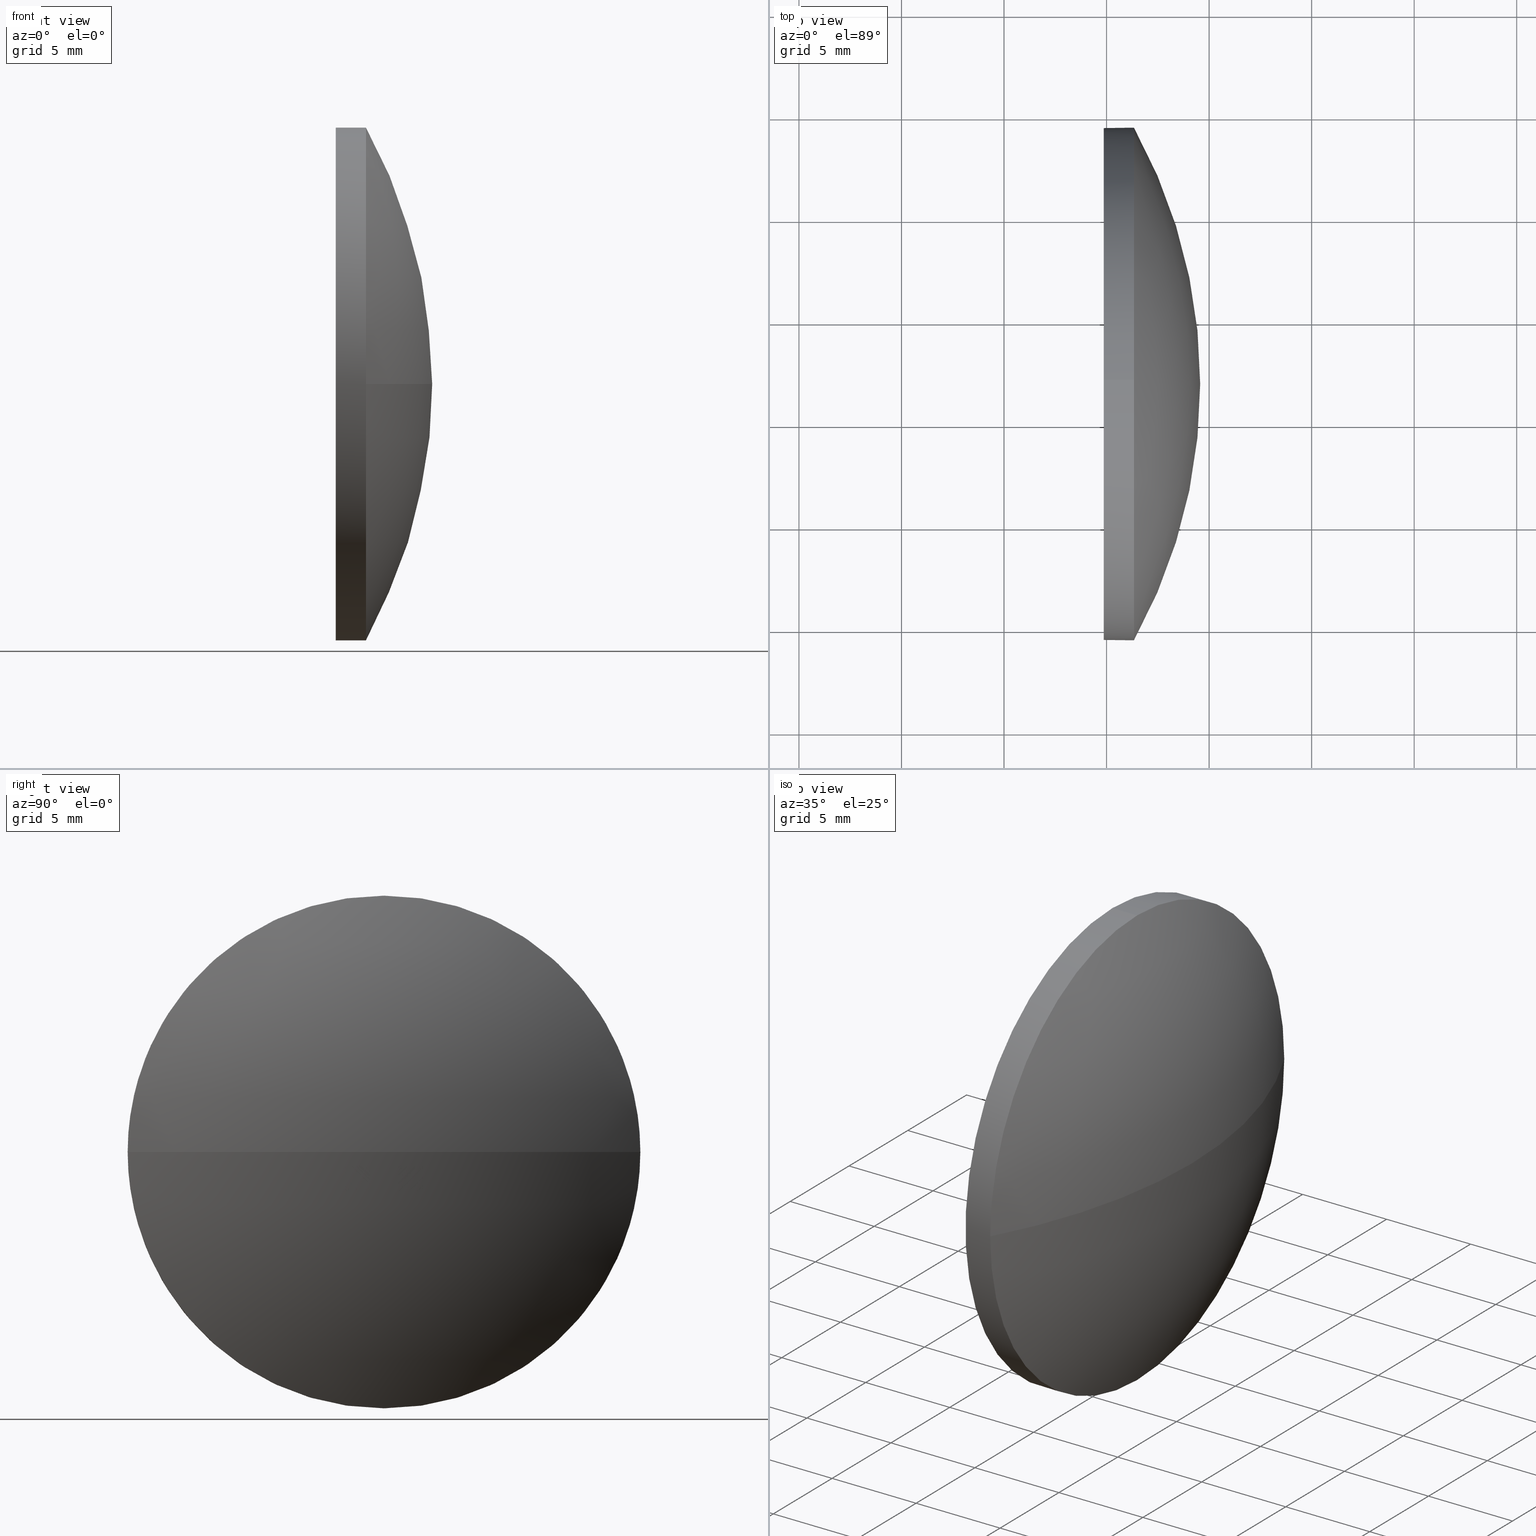
[diagram: canonical four-view strip — front | top / right | iso, engineering-drawing reading convention]
A machine part, canonical four-view strip (front | top / right | iso — engineering-drawing reading convention). The complete STEP part file that produces these views, byte-faithful:
ISO-10303-21;
HEADER;
FILE_DESCRIPTION (( 'STEP AP214' ),
    '1' );
FILE_NAME ('100126.STEP',
    '2019-05-14T08:46:22',
    ( '' ),
    ( '' ),
    'SwSTEP 2.0',
    'SolidWorks 2016',
    '' );
FILE_SCHEMA (( 'AUTOMOTIVE_DESIGN' ));
ENDSEC;

DATA;
#1 = EDGE_CURVE ( 'NONE', #102, #184, #131, .T. ) ;
#2 = CIRCLE ( 'NONE', #18, 25.80230650154791000 ) ;
#3 = PRODUCT_CONTEXT ( 'NONE', #109, 'mechanical' ) ;
#4 = EDGE_CURVE ( 'NONE', #39, #145, #2, .T. ) ;
#5 = MANIFOLD_SOLID_BREP ( '��ת1', #133 ) ;
#6 = ORIENTED_EDGE ( 'NONE', *, *, #64, .T. ) ;
#7 = CIRCLE ( 'NONE', #136, 25.80230650154793200 ) ;
#8 = APPLICATION_PROTOCOL_DEFINITION ( 'draft international standard', 'automotive_design', 1998, #109 ) ;
#9 = DIRECTION ( 'NONE',  ( 0.0000000000000000000, 0.0000000000000000000, 1.000000000000000000 ) ) ;
#10 = FACE_OUTER_BOUND ( 'NONE', #166, .T. ) ;
#11 = CARTESIAN_POINT ( 'NONE',  ( 554.8657775414822000, 36.89370908063153800, 0.0000000000000000000 ) ) ;
#12 = CARTESIAN_POINT ( 'NONE',  ( 552.5001616387212400, 36.89370908063153800, 12.49999999999999600 ) ) ;
#13 = CARTESIAN_POINT ( 'NONE',  ( 552.5001616387212400, 36.89370908063153800, -12.49999999999999600 ) ) ;
#14 = CARTESIAN_POINT ( 'NONE',  ( 554.8657775414822000, 36.89370908063153800, 12.49999999999999600 ) ) ;
#15 = DIRECTION ( 'NONE',  ( 1.000000000000000000, 0.0000000000000000000, 0.0000000000000000000 ) ) ;
#16 = ADVANCED_BREP_SHAPE_REPRESENTATION ( '100126', ( #5, #97 ), #85 ) ;
#17 = ORIENTED_EDGE ( 'NONE', *, *, #150, .F. ) ;
#18 = AXIS2_PLACEMENT_3D ( 'NONE', #169, #153, #106 ) ;
#19 = ADVANCED_FACE ( 'NONE', ( #118 ), #147, .T. ) ;
#20 = EDGE_LOOP ( 'NONE', ( #22, #49, #50, #81 ) ) ;
#21 = EDGE_CURVE ( 'NONE', #173, #145, #96, .T. ) ;
#22 = ORIENTED_EDGE ( 'NONE', *, *, #181, .F. ) ;
#23 = CARTESIAN_POINT ( 'NONE',  ( 554.8657775414822000, 36.89370908063153800, -12.49999999999999600 ) ) ;
#24 = DIRECTION ( 'NONE',  ( -1.000000000000000000, -0.0000000000000000000, -0.0000000000000000000 ) ) ;
#25 =( GEOMETRIC_REPRESENTATION_CONTEXT ( 3 ) GLOBAL_UNCERTAINTY_ASSIGNED_CONTEXT ( ( #112 ) ) GLOBAL_UNIT_ASSIGNED_CONTEXT ( ( #155, #108, #105 ) ) REPRESENTATION_CONTEXT ( 'NONE', 'WORKASPACE' ) );
#26 = DIRECTION ( 'NONE',  ( -1.000000000000000000, -0.0000000000000000000, -0.0000000000000000000 ) ) ;
#27 =( NAMED_UNIT ( * ) PLANE_ANGLE_UNIT ( ) SI_UNIT ( $, .RADIAN. ) );
#28 = DIRECTION ( 'NONE',  ( 0.0000000000000000000, 0.0000000000000000000, 1.000000000000000000 ) ) ;
#29 = FILL_AREA_STYLE ('',( #171 ) ) ;
#30 = CARTESIAN_POINT ( 'NONE',  ( 554.8657775414822000, 36.89370908063153800, 0.0000000000000000000 ) ) ;
#31 = DIRECTION ( 'NONE',  ( 0.0000000000000000000, -1.224646799147353200E-016, 1.000000000000000000 ) ) ;
#32 = ORIENTED_EDGE ( 'NONE', *, *, #1, .F. ) ;
#33 = AXIS2_PLACEMENT_3D ( 'NONE', #82, #70, #157 ) ;
#34 = STYLED_ITEM ( 'NONE', ( #58 ), #5 ) ;
#35 = ORIENTED_EDGE ( 'NONE', *, *, #88, .F. ) ;
#36 = PRODUCT_DEFINITION ( 'δ֪', '', #86, #121 ) ;
#37 = LINE ( 'NONE', #13, #128 ) ;
#38 = AXIS2_PLACEMENT_3D ( 'NONE', #93, #168, #182 ) ;
#39 = VERTEX_POINT ( 'NONE', #123 ) ;
#40 = DIRECTION ( 'NONE',  ( -1.000000000000000000, -0.0000000000000000000, -0.0000000000000000000 ) ) ;
#41 = FACE_OUTER_BOUND ( 'NONE', #140, .T. ) ;
#42 = DIRECTION ( 'NONE',  ( 0.0000000000000000000, 0.0000000000000000000, 1.000000000000000000 ) ) ;
#43 = DIRECTION ( 'NONE',  ( 0.0000000000000000000, -1.000000000000000000, 0.0000000000000000000 ) ) ;
#44 = ORIENTED_EDGE ( 'NONE', *, *, #4, .F. ) ;
#45 = DIRECTION ( 'NONE',  ( 0.0000000000000000000, 0.0000000000000000000, 1.000000000000000000 ) ) ;
#46 =( LENGTH_UNIT ( ) NAMED_UNIT ( * ) SI_UNIT ( .MILLI., .METRE. ) );
#47 = AXIS2_PLACEMENT_3D ( 'NONE', #30, #141, #71 ) ;
#48 = AXIS2_PLACEMENT_3D ( 'NONE', #103, #177, #53 ) ;
#49 = ORIENTED_EDGE ( 'NONE', *, *, #4, .T. ) ;
#50 = ORIENTED_EDGE ( 'NONE', *, *, #21, .F. ) ;
#51 = AXIS2_PLACEMENT_3D ( 'NONE', #11, #80, #119 ) ;
#52 = SURFACE_SIDE_STYLE ('',( #63 ) ) ;
#53 = DIRECTION ( 'NONE',  ( 0.0000000000000000000, 0.0000000000000000000, 1.000000000000000000 ) ) ;
#54 = CARTESIAN_POINT ( 'NONE',  ( 556.3357775414822300, 36.89370908063153800, 0.0000000000000000000 ) ) ;
#55 = CARTESIAN_POINT ( 'NONE',  ( 556.3357775414822300, 24.39370908063157700, 0.0000000000000000000 ) ) ;
#56 = SURFACE_STYLE_USAGE ( .BOTH. , #122 ) ;
#57 = DIRECTION ( 'NONE',  ( 0.0000000000000000000, -1.000000000000000000, -1.224646799147353200E-016 ) ) ;
#58 = PRESENTATION_STYLE_ASSIGNMENT (( #56 ) ) ;
#59 = SHAPE_DEFINITION_REPRESENTATION ( #115, #16 ) ;
#60 = ADVANCED_FACE ( 'NONE', ( #41 ), #183, .F. ) ;
#61 = VERTEX_POINT ( 'NONE', #14 ) ;
#62 = MECHANICAL_DESIGN_GEOMETRIC_PRESENTATION_REPRESENTATION (  '', ( #83 ), #162 ) ;
#63 = SURFACE_STYLE_FILL_AREA ( #29 ) ;
#64 = EDGE_CURVE ( 'NONE', #110, #61, #99, .T. ) ;
#65 = EDGE_LOOP ( 'NONE', ( #127, #151, #179, #17, #114 ) ) ;
#66 =( NAMED_UNIT ( * ) SI_UNIT ( $, .STERADIAN. ) SOLID_ANGLE_UNIT ( ) );
#67 = CARTESIAN_POINT ( 'NONE',  ( 556.3357775414822300, 36.89370908063153800, 12.49999999999999600 ) ) ;
#68 = DIRECTION ( 'NONE',  ( 0.0000000000000000000, 0.0000000000000000000, 1.000000000000000000 ) ) ;
#69 = DIRECTION ( 'NONE',  ( -1.000000000000000000, -0.0000000000000000000, -0.0000000000000000000 ) ) ;
#70 = DIRECTION ( 'NONE',  ( -1.000000000000000000, -0.0000000000000000000, -0.0000000000000000000 ) ) ;
#71 = DIRECTION ( 'NONE',  ( 0.0000000000000000000, 0.0000000000000000000, 1.000000000000000000 ) ) ;
#72 = COLOUR_RGB ( '',1.000000000000000000, 1.000000000000000000, 1.000000000000000000 ) ;
#73 = SPHERICAL_SURFACE ( 'NONE', #144, 25.80230650154793200 ) ;
#74 = UNCERTAINTY_MEASURE_WITH_UNIT (LENGTH_MEASURE( 1.000000000000000100E-005 ), #46, 'distance_accuracy_value', 'NONE');
#75 = MECHANICAL_DESIGN_GEOMETRIC_PRESENTATION_REPRESENTATION (  '', ( #34 ), #25 ) ;
#76 = ORIENTED_EDGE ( 'NONE', *, *, #150, .T. ) ;
#77 = CYLINDRICAL_SURFACE ( 'NONE', #164, 12.49999999999999600 ) ;
#78 = ORIENTED_EDGE ( 'NONE', *, *, #88, .T. ) ;
#79 = LINE ( 'NONE', #12, #113 ) ;
#80 = DIRECTION ( 'NONE',  ( -1.000000000000000000, -0.0000000000000000000, -0.0000000000000000000 ) ) ;
#81 = ORIENTED_EDGE ( 'NONE', *, *, #132, .F. ) ;
#82 = CARTESIAN_POINT ( 'NONE',  ( 556.3357775414822300, 36.89370908063153800, 0.0000000000000000000 ) ) ;
#83 = STYLED_ITEM ( 'NONE', ( #167 ), #16 ) ;
#84 = CARTESIAN_POINT ( 'NONE',  ( 552.5001616387212400, 36.89370908063153800, 0.0000000000000000000 ) ) ;
#85 =( GEOMETRIC_REPRESENTATION_CONTEXT ( 3 ) GLOBAL_UNCERTAINTY_ASSIGNED_CONTEXT ( ( #74 ) ) GLOBAL_UNIT_ASSIGNED_CONTEXT ( ( #46, #126, #94 ) ) REPRESENTATION_CONTEXT ( 'NONE', 'WORKASPACE' ) );
#86 = PRODUCT_DEFINITION_FORMATION_WITH_SPECIFIED_SOURCE ( '�κ�', '', #92, .NOT_KNOWN. ) ;
#87 = SURFACE_STYLE_FILL_AREA ( #156 ) ;
#88 = EDGE_CURVE ( 'NONE', #145, #102, #149, .T. ) ;
#89 = CARTESIAN_POINT ( 'NONE',  ( 556.3357775414822300, 36.89370908063153800, 0.0000000000000000000 ) ) ;
#90 = FILL_AREA_STYLE_COLOUR ( '', #72 ) ;
#91 = APPLICATION_PROTOCOL_DEFINITION ( 'draft international standard', 'automotive_design', 1998, #125 ) ;
#92 = PRODUCT ( '100126', '100126', '', ( #3 ) ) ;
#93 = CARTESIAN_POINT ( 'NONE',  ( 554.8657775414822000, 36.89370908063153800, 0.0000000000000000000 ) ) ;
#94 =( NAMED_UNIT ( * ) SI_UNIT ( $, .STERADIAN. ) SOLID_ANGLE_UNIT ( ) );
#95 = EDGE_LOOP ( 'NONE', ( #98, #134, #78, #76, #130 ) ) ;
#96 = CIRCLE ( 'NONE', #142, 12.49999999999999600 ) ;
#97 = AXIS2_PLACEMENT_3D ( 'NONE', #170, #161, #15 ) ;
#98 = ORIENTED_EDGE ( 'NONE', *, *, #163, .F. ) ;
#99 = CIRCLE ( 'NONE', #51, 12.49999999999999600 ) ;
#100 = PRESENTATION_LAYER_ASSIGNMENT (  '', '', ( #34 ) ) ;
#101 = AXIS2_PLACEMENT_3D ( 'NONE', #89, #40, #9 ) ;
#102 = VERTEX_POINT ( 'NONE', #67 ) ;
#103 = CARTESIAN_POINT ( 'NONE',  ( 552.5001616387212400, 36.89370908063153800, 0.0000000000000000000 ) ) ;
#104 = SURFACE_STYLE_USAGE ( .BOTH. , #52 ) ;
#105 =( NAMED_UNIT ( * ) SI_UNIT ( $, .STERADIAN. ) SOLID_ANGLE_UNIT ( ) );
#106 = DIRECTION ( 'NONE',  ( -1.000000000000000000, 0.0000000000000000000, 0.0000000000000000000 ) ) ;
#107 = CIRCLE ( 'NONE', #146, 12.49999999999999600 ) ;
#108 =( NAMED_UNIT ( * ) PLANE_ANGLE_UNIT ( ) SI_UNIT ( $, .RADIAN. ) );
#109 = APPLICATION_CONTEXT ( 'automotive_design' ) ;
#110 = VERTEX_POINT ( 'NONE', #23 ) ;
#111 = CARTESIAN_POINT ( 'NONE',  ( 556.3357775414822300, 36.89370908063153800, -12.49999999999999600 ) ) ;
#112 = UNCERTAINTY_MEASURE_WITH_UNIT (LENGTH_MEASURE( 1.000000000000000100E-005 ), #155, 'distance_accuracy_value', 'NONE');
#113 = VECTOR ( 'NONE', #26, 1000.000000000000000 ) ;
#114 = ORIENTED_EDGE ( 'NONE', *, *, #1, .T. ) ;
#115 = PRODUCT_DEFINITION_SHAPE ( 'NONE', 'NONE',  #36 ) ;
#116 = UNCERTAINTY_MEASURE_WITH_UNIT (LENGTH_MEASURE( 1.000000000000000100E-005 ), #152, 'distance_accuracy_value', 'NONE');
#117 = SPHERICAL_SURFACE ( 'NONE', #174, 25.80230650154793200 ) ;
#118 = FACE_OUTER_BOUND ( 'NONE', #95, .T. ) ;
#119 = DIRECTION ( 'NONE',  ( 0.0000000000000000000, 0.0000000000000000000, 1.000000000000000000 ) ) ;
#120 = CARTESIAN_POINT ( 'NONE',  ( 533.7634710399343000, 36.89370908063155200, 0.0000000000000000000 ) ) ;
#121 = PRODUCT_DEFINITION_CONTEXT ( 'detailed design', #125, 'design' ) ;
#122 = SURFACE_SIDE_STYLE ('',( #87 ) ) ;
#123 = CARTESIAN_POINT ( 'NONE',  ( 559.5657775414821300, 36.89370908063155200, 0.0000000000000000000 ) ) ;
#124 = DIRECTION ( 'NONE',  ( -1.000000000000000000, -0.0000000000000000000, -0.0000000000000000000 ) ) ;
#125 = APPLICATION_CONTEXT ( 'automotive_design' ) ;
#126 =( NAMED_UNIT ( * ) PLANE_ANGLE_UNIT ( ) SI_UNIT ( $, .RADIAN. ) );
#127 = ORIENTED_EDGE ( 'NONE', *, *, #132, .T. ) ;
#128 = VECTOR ( 'NONE', #139, 1000.000000000000000 ) ;
#129 = ADVANCED_FACE ( 'NONE', ( #10 ), #117, .T. ) ;
#130 = ORIENTED_EDGE ( 'NONE', *, *, #64, .F. ) ;
#131 = CIRCLE ( 'NONE', #33, 12.49999999999999600 ) ;
#132 = EDGE_CURVE ( 'NONE', #184, #173, #107, .T. ) ;
#133 = CLOSED_SHELL ( 'NONE', ( #175, #129, #143, #19, #60 ) ) ;
#134 = ORIENTED_EDGE ( 'NONE', *, *, #21, .T. ) ;
#135 = CARTESIAN_POINT ( 'NONE',  ( 533.7634710399343000, 36.89370908063155200, 0.0000000000000000000 ) ) ;
#136 = AXIS2_PLACEMENT_3D ( 'NONE', #159, #31, #57 ) ;
#137 = DIRECTION ( 'NONE',  ( 0.0000000000000000000, -1.000000000000000000, 0.0000000000000000000 ) ) ;
#138 = DIRECTION ( 'NONE',  ( 0.0000000000000000000, 0.0000000000000000000, 1.000000000000000000 ) ) ;
#139 = DIRECTION ( 'NONE',  ( -1.000000000000000000, -0.0000000000000000000, -0.0000000000000000000 ) ) ;
#140 = EDGE_LOOP ( 'NONE', ( #176, #6 ) ) ;
#141 = DIRECTION ( 'NONE',  ( -1.000000000000000000, -0.0000000000000000000, -0.0000000000000000000 ) ) ;
#142 = AXIS2_PLACEMENT_3D ( 'NONE', #154, #69, #138 ) ;
#143 = ADVANCED_FACE ( 'NONE', ( #186 ), #73, .T. ) ;
#144 = AXIS2_PLACEMENT_3D ( 'NONE', #120, #42, #137 ) ;
#145 = VERTEX_POINT ( 'NONE', #55 ) ;
#146 = AXIS2_PLACEMENT_3D ( 'NONE', #54, #24, #68 ) ;
#147 = CYLINDRICAL_SURFACE ( 'NONE', #48, 12.49999999999999600 ) ;
#148 = PRESENTATION_LAYER_ASSIGNMENT (  '', '', ( #83 ) ) ;
#149 = CIRCLE ( 'NONE', #101, 12.49999999999999600 ) ;
#150 = EDGE_CURVE ( 'NONE', #102, #61, #79, .T. ) ;
#151 = ORIENTED_EDGE ( 'NONE', *, *, #163, .T. ) ;
#152 =( LENGTH_UNIT ( ) NAMED_UNIT ( * ) SI_UNIT ( .MILLI., .METRE. ) );
#153 = DIRECTION ( 'NONE',  ( 0.0000000000000000000, 0.0000000000000000000, -1.000000000000000000 ) ) ;
#154 = CARTESIAN_POINT ( 'NONE',  ( 556.3357775414822300, 36.89370908063153800, 0.0000000000000000000 ) ) ;
#155 =( LENGTH_UNIT ( ) NAMED_UNIT ( * ) SI_UNIT ( .MILLI., .METRE. ) );
#156 = FILL_AREA_STYLE ('',( #90 ) ) ;
#157 = DIRECTION ( 'NONE',  ( 0.0000000000000000000, 0.0000000000000000000, 1.000000000000000000 ) ) ;
#158 = ORIENTED_EDGE ( 'NONE', *, *, #181, .T. ) ;
#159 = CARTESIAN_POINT ( 'NONE',  ( 533.7634710399343000, 36.89370908063155200, 0.0000000000000000000 ) ) ;
#160 = CIRCLE ( 'NONE', #47, 12.49999999999999600 ) ;
#161 = DIRECTION ( 'NONE',  ( 0.0000000000000000000, 0.0000000000000000000, 1.000000000000000000 ) ) ;
#162 =( GEOMETRIC_REPRESENTATION_CONTEXT ( 3 ) GLOBAL_UNCERTAINTY_ASSIGNED_CONTEXT ( ( #116 ) ) GLOBAL_UNIT_ASSIGNED_CONTEXT ( ( #152, #27, #66 ) ) REPRESENTATION_CONTEXT ( 'NONE', 'WORKASPACE' ) );
#163 = EDGE_CURVE ( 'NONE', #173, #110, #37, .T. ) ;
#164 = AXIS2_PLACEMENT_3D ( 'NONE', #84, #124, #45 ) ;
#165 = EDGE_CURVE ( 'NONE', #61, #110, #160, .T. ) ;
#166 = EDGE_LOOP ( 'NONE', ( #44, #158, #32, #35 ) ) ;
#167 = PRESENTATION_STYLE_ASSIGNMENT (( #104 ) ) ;
#168 = DIRECTION ( 'NONE',  ( 1.000000000000000000, 0.0000000000000000000, 0.0000000000000000000 ) ) ;
#169 = CARTESIAN_POINT ( 'NONE',  ( 533.7634710399343000, 36.89370908063155200, 0.0000000000000000000 ) ) ;
#170 = CARTESIAN_POINT ( 'NONE',  ( 0.0000000000000000000, 0.0000000000000000000, 0.0000000000000000000 ) ) ;
#171 = FILL_AREA_STYLE_COLOUR ( '', #178 ) ;
#172 = PRODUCT_RELATED_PRODUCT_CATEGORY ( 'part', '', ( #92 ) ) ;
#173 = VERTEX_POINT ( 'NONE', #111 ) ;
#174 = AXIS2_PLACEMENT_3D ( 'NONE', #135, #28, #43 ) ;
#175 = ADVANCED_FACE ( 'NONE', ( #180 ), #77, .T. ) ;
#176 = ORIENTED_EDGE ( 'NONE', *, *, #165, .T. ) ;
#177 = DIRECTION ( 'NONE',  ( -1.000000000000000000, -0.0000000000000000000, -0.0000000000000000000 ) ) ;
#178 = COLOUR_RGB ( '',1.000000000000000000, 1.000000000000000000, 1.000000000000000000 ) ;
#179 = ORIENTED_EDGE ( 'NONE', *, *, #165, .F. ) ;
#180 = FACE_OUTER_BOUND ( 'NONE', #65, .T. ) ;
#181 = EDGE_CURVE ( 'NONE', #39, #184, #7, .T. ) ;
#182 = DIRECTION ( 'NONE',  ( 0.0000000000000000000, 0.0000000000000000000, -1.000000000000000000 ) ) ;
#183 = PLANE ( 'NONE',  #38 ) ;
#184 = VERTEX_POINT ( 'NONE', #185 ) ;
#185 = CARTESIAN_POINT ( 'NONE',  ( 556.3357775414822300, 49.39370908063151700, 1.530808498934187200E-015 ) ) ;
#186 = FACE_OUTER_BOUND ( 'NONE', #20, .T. ) ;
ENDSEC;
END-ISO-10303-21;
